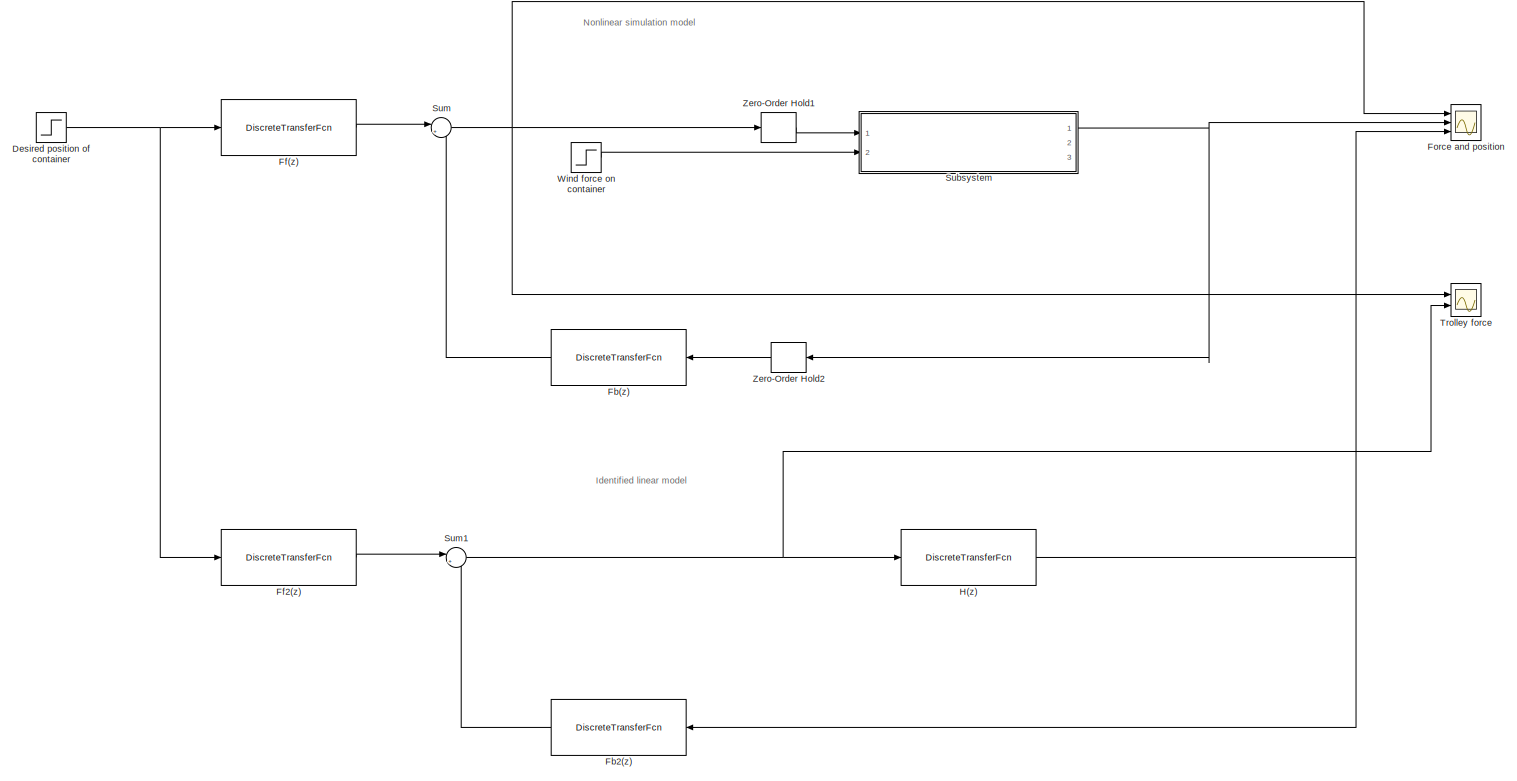
[diagram: root canvas - part 1/1, most of the canvas]
MODEL slx_5f1fb34ef1a7
KIND model
CONFIG AbsTol = auto
CONFIG EnableMultiTasking = off
CONFIG FixedStep = auto
CONFIG MaxStep = auto
CONFIG MinStep = auto
CONFIG RelTol = 1e-3
CONFIG SampleTimeConstraint = Unconstrained
CONFIG SolverName = ode23t
CONFIG StartTime = 0.0
CONFIG StopTime = 25
BLOCK [Step] Desired position of container
  After = 5
  SampleTime = 0
BLOCK [DiscreteTransferFcn] Fb(z)
  Denominator = R_c
  InputPortMap = u0
  Numerator = S_c
  Ports = [1, 1]
  SampleTime = h
BLOCK [DiscreteTransferFcn] Fb2(z)
  Denominator = R_c
  InputPortMap = u0
  Numerator = S_c
  Ports = [1, 1]
  SampleTime = h
BLOCK [DiscreteTransferFcn] Ff(z)
  Denominator = R_c
  InputPortMap = u0
  Numerator = T_c
  Ports = [1, 1]
  SampleTime = h
BLOCK [DiscreteTransferFcn] Ff2(z)
  Denominator = R_c
  InputPortMap = u0
  Numerator = T_c
  Ports = [1, 1]
  SampleTime = h
BLOCK [Scope] Force and position
  Floating = off
  NumInputPorts = 3
  Ports = [3]
  ScopeSpecificationString = Simulink.scopes.TimeScopeBlockCfg('CurrentConfiguration', extmgr.ConfigurationSet(extmgr.Configuration('Core','General UI',true),extmgr.Configuration('Core','Source UI',true),extmgr.Configuration('Sources','WiredSimulink',true),extmgr.Configuration('Visuals','Time Domain',true,'SerializedDisplays',{struct('MinYLimReal','-27768.90474','MaxYLimReal','32642.19769','YLabelReal','','MinYLimMag','   0.0...<+2401ch>
BLOCK [DiscreteTransferFcn] H(z)
  Denominator = A
  InputPortMap = u0
  Numerator = B
  Ports = [1, 1]
  SampleTime = h
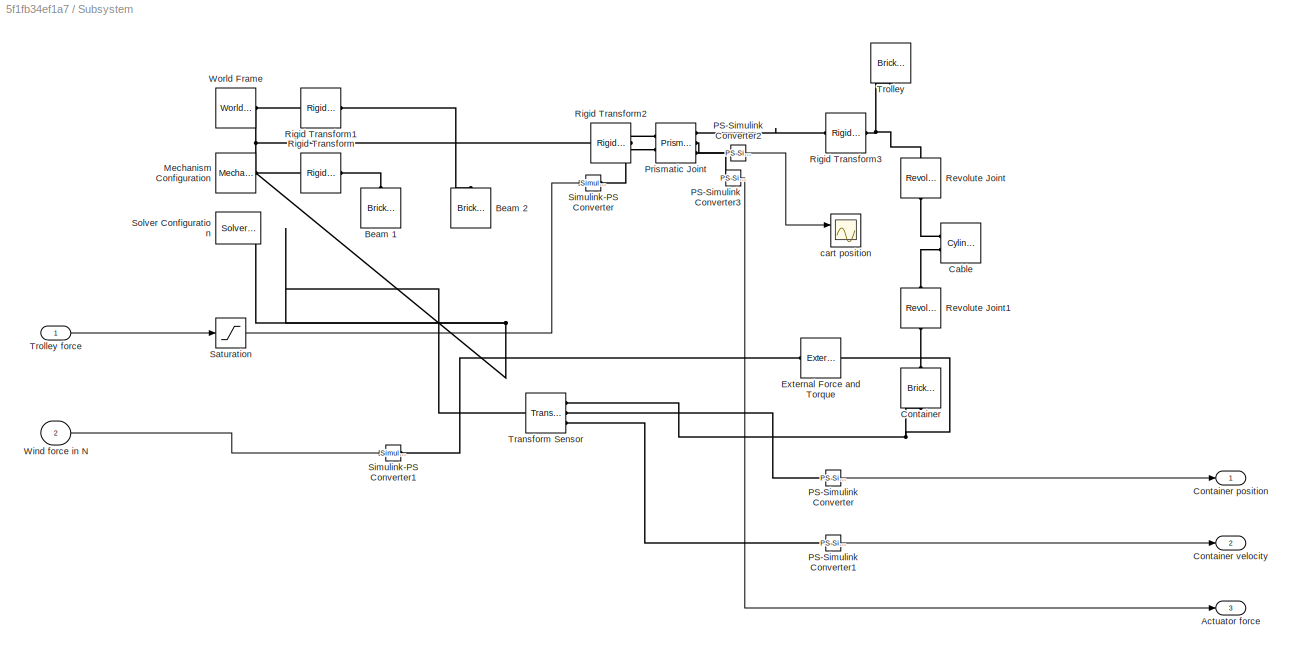
BLOCK [SubSystem] Subsystem
  Ports = [2, 3]
  RequestExecContextInheritance = off
BLOCK [Outport] Subsystem/Actuator force
  Port = 3
BLOCK [Reference] Subsystem/Beam 1  REF=sm_lib/Body Elements/Brick Solid
  NameLocation = right
  Ports = [0, 0, 0, 0, 0, 0, 1]
  SourceBlock = sm_lib/Body Elements/Brick Solid
  SourceProductBaseCode = MS
  SourceType = Brick Solid
BLOCK [Reference] Subsystem/Beam 2  REF=sm_lib/Body Elements/Brick Solid
  NameLocation = right
  Ports = [0, 0, 0, 0, 0, 0, 1]
  SourceBlock = sm_lib/Body Elements/Brick Solid
  SourceProductBaseCode = MS
  SourceType = Brick Solid
BLOCK [Reference] Subsystem/Cable  REF=sm_lib/Body Elements/Cylindrical Solid
  Ports = [0, 0, 0, 0, 0, 2, 1]
  SourceBlock = sm_lib/Body Elements/Cylindrical Solid
  SourceProductBaseCode = MS
  SourceType = Cylindrical Solid
BLOCK [Reference] Subsystem/Container  REF=sm_lib/Body Elements/Brick Solid
  NameLocation = left
  Ports = [0, 0, 0, 0, 0, 1, 1]
  SourceBlock = sm_lib/Body Elements/Brick Solid
  SourceProductBaseCode = MS
  SourceType = Brick Solid
BLOCK [Outport] Subsystem/Container position
BLOCK [Outport] Subsystem/Container velocity
  Port = 2
BLOCK [Reference] Subsystem/External Force and Torque  REF=sm_lib/Forces and
Torques/External Force
and Torque
  Ports = [0, 0, 0, 0, 0, 1, 1]
  SourceBlock = sm_lib/Forces and\nTorques/External Force\nand Torque
  SourceProductBaseCode = MS
  SourceType = External Force\nand Torque
BLOCK [Reference] Subsystem/Mechanism Configuration  REF=sm_lib/Utilities/Mechanism
Configuration
  Ports = [0, 0, 0, 0, 0, 0, 1]
  SourceBlock = sm_lib/Utilities/Mechanism\nConfiguration
  SourceProductBaseCode = MS
  SourceType = Mechanism\nConfiguration
BLOCK [Reference] Subsystem/PS-Simulink Converter  REF=nesl_utility/PS-Simulink
Converter
  Ports = [0, 1, 0, 0, 0, 1]
  SourceBlock = nesl_utility/PS-Simulink\nConverter
  SourceProductBaseCode = PW,SS
  SourceType = PS-Simulink\nConverter
BLOCK [Reference] Subsystem/PS-Simulink Converter1  REF=nesl_utility/PS-Simulink
Converter
  Ports = [0, 1, 0, 0, 0, 1]
  SourceBlock = nesl_utility/PS-Simulink\nConverter
  SourceProductBaseCode = PW,SS
  SourceType = PS-Simulink\nConverter
BLOCK [Reference] Subsystem/PS-Simulink Converter2  REF=nesl_utility/PS-Simulink
Converter
  Ports = [0, 1, 0, 0, 0, 1]
  SourceBlock = nesl_utility/PS-Simulink\nConverter
  SourceProductBaseCode = PW,SS
  SourceType = PS-Simulink\nConverter
BLOCK [Reference] Subsystem/PS-Simulink Converter3  REF=nesl_utility/PS-Simulink
Converter
  Ports = [0, 1, 0, 0, 0, 1]
  SourceBlock = nesl_utility/PS-Simulink\nConverter
  SourceProductBaseCode = PW,SS
  SourceType = PS-Simulink\nConverter
BLOCK [Reference] Subsystem/Prismatic Joint  REF=sm_lib/Joints/Prismatic
Joint
  Ports = [0, 0, 0, 0, 0, 2, 3]
  SourceBlock = sm_lib/Joints/Prismatic\nJoint
  SourceProductBaseCode = MS
  SourceType = Prismatic\nJoint
BLOCK [Reference] Subsystem/Revolute Joint  REF=sm_lib/Joints/Revolute Joint
  NameLocation = left
  Ports = [0, 0, 0, 0, 0, 1, 1]
  SourceBlock = sm_lib/Joints/Revolute Joint
  SourceProductBaseCode = MS
  SourceType = Revolute Joint
BLOCK [Reference] Subsystem/Revolute Joint1  REF=sm_lib/Joints/Revolute Joint
  NameLocation = left
  Ports = [0, 0, 0, 0, 0, 1, 1]
  SourceBlock = sm_lib/Joints/Revolute Joint
  SourceProductBaseCode = MS
  SourceType = Revolute Joint
BLOCK [Reference] Subsystem/Rigid Transform  REF=sm_lib/Frames and
Transforms/Rigid
Transform
  Ports = [0, 0, 0, 0, 0, 1, 1]
  SourceBlock = sm_lib/Frames and\nTransforms/Rigid\nTransform
  SourceProductBaseCode = MS
  SourceType = Rigid\nTransform
BLOCK [Reference] Subsystem/Rigid Transform1  REF=sm_lib/Frames and
Transforms/Rigid
Transform
  Ports = [0, 0, 0, 0, 0, 1, 1]
  SourceBlock = sm_lib/Frames and\nTransforms/Rigid\nTransform
  SourceProductBaseCode = MS
  SourceType = Rigid\nTransform
BLOCK [Reference] Subsystem/Rigid Transform2  REF=sm_lib/Frames and
Transforms/Rigid
Transform
  Ports = [0, 0, 0, 0, 0, 1, 1]
  SourceBlock = sm_lib/Frames and\nTransforms/Rigid\nTransform
  SourceProductBaseCode = MS
  SourceType = Rigid\nTransform
BLOCK [Reference] Subsystem/Rigid Transform3  REF=sm_lib/Frames and
Transforms/Rigid
Transform
  Ports = [0, 0, 0, 0, 0, 1, 1]
  SourceBlock = sm_lib/Frames and\nTransforms/Rigid\nTransform
  SourceProductBaseCode = MS
  SourceType = Rigid\nTransform
BLOCK [Saturate] Subsystem/Saturation
  LowerLimit = -3e5
  UpperLimit = 3e5
BLOCK [Reference] Subsystem/Simulink-PS Converter  REF=nesl_utility/Simulink-PS
Converter
  Ports = [1, 0, 0, 0, 0, 0, 1]
  SourceBlock = nesl_utility/Simulink-PS\nConverter
  SourceProductBaseCode = PW,SS
  SourceType = Simulink-PS\nConverter
BLOCK [Reference] Subsystem/Simulink-PS Converter1  REF=nesl_utility/Simulink-PS
Converter
  Ports = [1, 0, 0, 0, 0, 0, 1]
  SourceBlock = nesl_utility/Simulink-PS\nConverter
  SourceProductBaseCode = PW,SS
  SourceType = Simulink-PS\nConverter
BLOCK [Reference] Subsystem/Solver Configuration  REF=nesl_utility/Solver
Configuration
  Ports = [0, 0, 0, 0, 0, 0, 1]
  SourceBlock = nesl_utility/Solver\nConfiguration
  SourceProductBaseCode = PW,SS
  SourceType = Solver\nConfiguration
BLOCK [Reference] Subsystem/Transform Sensor  REF=sm_lib/Frames and
Transforms/Transform
Sensor
  Ports = [0, 0, 0, 0, 0, 1, 3]
  SourceBlock = sm_lib/Frames and\nTransforms/Transform\nSensor
  SourceProductBaseCode = MS
  SourceType = Transform\nSensor
BLOCK [Reference] Subsystem/Trolley  REF=sm_lib/Body Elements/Brick Solid
  NameLocation = left
  Ports = [0, 0, 0, 0, 0, 0, 1]
  SourceBlock = sm_lib/Body Elements/Brick Solid
  SourceProductBaseCode = MS
  SourceType = Brick Solid
BLOCK [Inport] Subsystem/Trolley force
BLOCK [Inport] Subsystem/Wind force in N
  Port = 2
BLOCK [Reference] Subsystem/World Frame  REF=sm_lib/Frames and
Transforms/World Frame
  Ports = [0, 0, 0, 0, 0, 0, 1]
  SourceBlock = sm_lib/Frames and\nTransforms/World Frame
  SourceProductBaseCode = MS
  SourceType = World Frame
BLOCK [Scope] Subsystem/cart position
  Floating = off
  NumInputPorts = 2
  Ports = [2]
  ScopeSpecificationString = Simulink.scopes.TimeScopeBlockCfg('CurrentConfiguration', extmgr.ConfigurationSet(extmgr.Configuration('Core','General UI',true),extmgr.Configuration('Core','Source UI',true),extmgr.Configuration('Sources','WiredSimulink',true,'DataLoggingVariableName','ScopeData1'),extmgr.Configuration('Visuals','Time Domain',true,'SerializedDisplays',{struct('MinYLimReal','-9.08918','MaxYLimReal','18.00659','YLa...<+1395ch>
BLOCK [Sum] Sum
  Inputs = |+-
  Ports = [2, 1]
BLOCK [Sum] Sum1
  Inputs = |+-
  Ports = [2, 1]
BLOCK [Scope] Trolley force
  Floating = off
  NumInputPorts = 2
  Ports = [2]
  ScopeSpecificationString = Simulink.scopes.TimeScopeBlockCfg('CurrentConfiguration', extmgr.ConfigurationSet(extmgr.Configuration('Core','General UI',true),extmgr.Configuration('Core','Source UI',true),extmgr.Configuration('Sources','WiredSimulink',true,'DataLoggingVariableName','ScopeData3'),extmgr.Configuration('Visuals','Time Domain',true,'SerializedDisplays',{struct('MinYLimReal','-27768.90474','MaxYLimReal','32642.1976...<+1465ch>
BLOCK [Step] Wind force on container
  After = 1e4
  SampleTime = 0
  Time = 15
BLOCK [ZeroOrderHold] Zero-Order Hold1
  SampleTime = h
BLOCK [ZeroOrderHold] Zero-Order Hold2
  SampleTime = h
ANNOTATION (root): Identified linear model
ANNOTATION (root): Nonlinear simulation model
NET Desired position of container:1 -> Ff(z):1, Ff2(z):1
LINE Fb(z):1 -> Sum:2
LINE Fb2(z):1 -> Sum1:2
LINE Ff(z):1 -> Sum:1
LINE Ff2(z):1 -> Sum1:1
NET H(z):1 -> Fb2(z):1, Force and position:3
LINE Subsystem/PS-Simulink Converter1:1 -> Subsystem/Container velocity:1
LINE Subsystem/PS-Simulink Converter2:1 -> Subsystem/cart position:1
LINE Subsystem/PS-Simulink Converter3:1 -> Subsystem/Actuator force:1
LINE Subsystem/PS-Simulink Converter:1 -> Subsystem/Container position:1
LINE Subsystem/Saturation:1 -> Subsystem/Simulink-PS Converter:1
LINE Subsystem/Trolley force:1 -> Subsystem/Saturation:1
LINE Subsystem/Wind force in N:1 -> Subsystem/Simulink-PS Converter1:1
NET Subsystem:1 -> Force and position:2, Zero-Order Hold2:1
NET Sum1:1 -> H(z):1, Trolley force:2
NET Sum:1 -> Force and position:1, Trolley force:1, Zero-Order Hold1:1
LINE Wind force on container:1 -> Subsystem:2
LINE Zero-Order Hold1:1 -> Subsystem:1
LINE Zero-Order Hold2:1 -> Fb(z):1
PLINE Subsystem/Beam 1:RConn1 -- Subsystem/Rigid Transform:RConn1
PLINE Subsystem/Beam 2:RConn1 -- Subsystem/Rigid Transform1:RConn1
PLINE Subsystem/Cable:LConn1 -- Subsystem/Revolute Joint:RConn1
PLINE Subsystem/Cable:LConn2 -- Subsystem/Revolute Joint1:LConn1
PLINE Subsystem/Container:LConn1 -- Subsystem/Revolute Joint1:RConn1
PNET net1: Subsystem/Container:RConn1 -- Subsystem/External Force and Torque:RConn1 -- Subsystem/Transform Sensor:RConn1
PLINE Subsystem/External Force and Torque:LConn1 -- Subsystem/Simulink-PS Converter1:RConn1
PNET net2: Subsystem/Mechanism Configuration:RConn1 -- Subsystem/Rigid Transform1:LConn1 -- Subsystem/Rigid Transform2:LConn1 -- Subsystem/Rigid Transform:LConn1 -- Subsystem/Solver Configuration:RConn1 -- Subsystem/Transform Sensor:LConn1 -- Subsystem/World Frame:RConn1
PLINE Subsystem/PS-Simulink Converter1:LConn1 -- Subsystem/Transform Sensor:RConn3
PLINE Subsystem/PS-Simulink Converter2:LConn1 -- Subsystem/Prismatic Joint:RConn2
PLINE Subsystem/PS-Simulink Converter3:LConn1 -- Subsystem/Prismatic Joint:RConn3
PLINE Subsystem/PS-Simulink Converter:LConn1 -- Subsystem/Transform Sensor:RConn2
PLINE Subsystem/Prismatic Joint:LConn1 -- Subsystem/Rigid Transform2:RConn1
PLINE Subsystem/Prismatic Joint:LConn2 -- Subsystem/Simulink-PS Converter:RConn1
PLINE Subsystem/Prismatic Joint:RConn1 -- Subsystem/Rigid Transform3:LConn1
PNET net3: Subsystem/Revolute Joint:LConn1 -- Subsystem/Rigid Transform3:RConn1 -- Subsystem/Trolley:RConn1
note: NET lines group one-source signal fan-out (src -> all destinations, sorted); 1:1 wires keep LINE; PNET lines group multi-terminal physical nets as a canonical sorted terminal list (undirected conserving connections); 2-terminal nets keep the pairwise PLINE form
